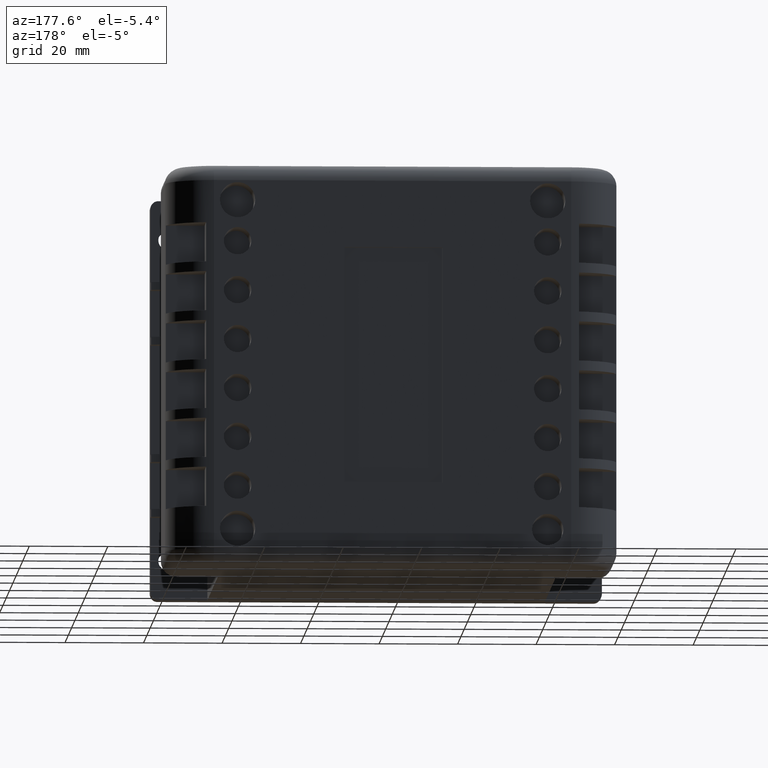
[diagram: clean part render]
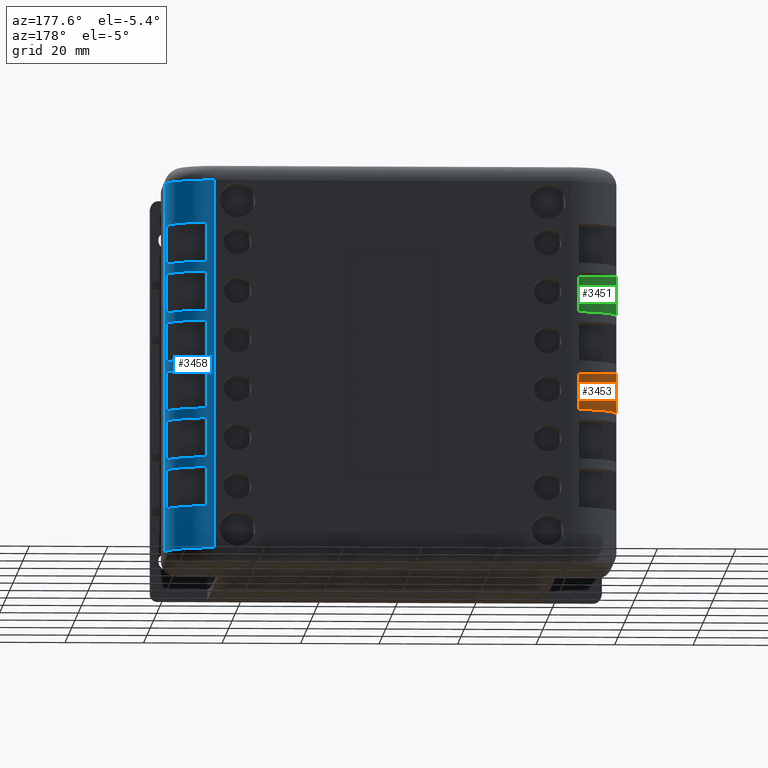
[diagram: same view with three faces highlighted in distinct colors, each labeled with its STEP entity id]
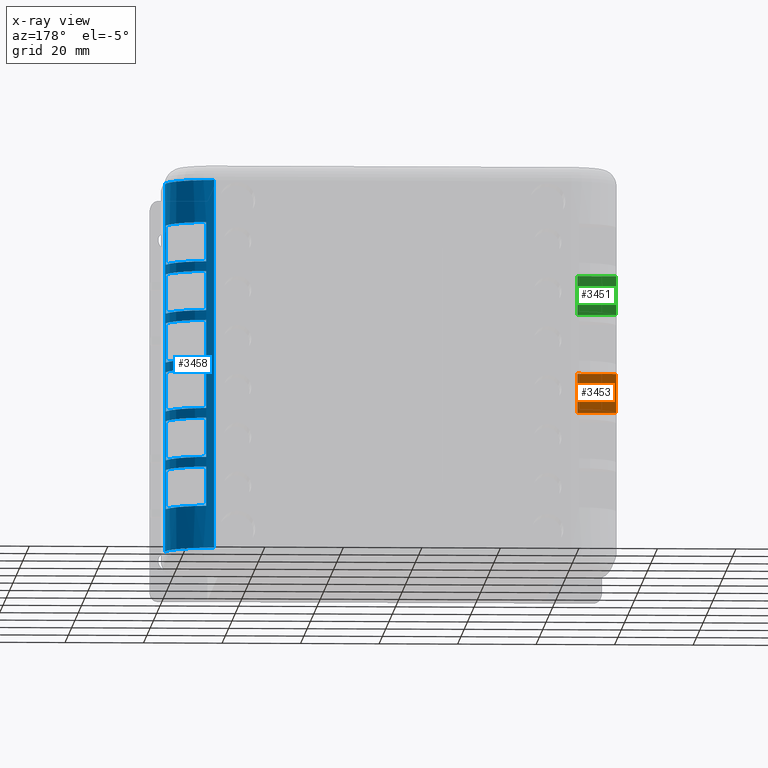
[diagram: x-ray of the same camera — body ghosted, the three highlighted faces saturated]
A machine part, auxiliary view with three faces highlighted in distinct colors.
The next image is the same camera in x-ray (body ghosted, the three faces saturated) — at least one of them is partly hidden behind the body in this view.
Their STEP definitions:

[orange] entity #3453 — the highlighted planar face has unit normal (0, 1, 0).
#414=FACE_OUTER_BOUND('',#648,.T.);
#648=EDGE_LOOP('',(#2790,#2791,#2792,#2793));
#926=LINE('',#5599,#1246);
#944=LINE('',#5644,#1264);
#946=LINE('',#5647,#1266);
#959=LINE('',#5676,#1279);
#1246=VECTOR('',#4655,10.);
#1264=VECTOR('',#4695,10.);
#1266=VECTOR('',#4699,10.);
#1279=VECTOR('',#4736,10.);
#1552=VERTEX_POINT('',#5592);
#1555=VERTEX_POINT('',#5597);
#1570=VERTEX_POINT('',#5641);
#1571=VERTEX_POINT('',#5643);
#1954=EDGE_CURVE('',#1555,#1552,#926,.T.);
#1976=EDGE_CURVE('',#1571,#1570,#944,.T.);
#1978=EDGE_CURVE('',#1570,#1552,#946,.T.);
#1991=EDGE_CURVE('',#1555,#1571,#959,.T.);
#2790=ORIENTED_EDGE('',*,*,#1954,.F.);
#2791=ORIENTED_EDGE('',*,*,#1991,.T.);
#2792=ORIENTED_EDGE('',*,*,#1976,.T.);
#2793=ORIENTED_EDGE('',*,*,#1978,.T.);
#3043=PLANE('',#3860);
#3453=ADVANCED_FACE('',(#414),#3043,.T.);
#3860=AXIS2_PLACEMENT_3D('',#5677,#4737,#4738);
#4655=DIRECTION('',(-3.483052626275E-16,0.,-1.));
#4695=DIRECTION('',(-1.14069973510506E-15,0.,-1.));
#4699=DIRECTION('',(-1.,0.,6.96610525255E-16));
#4736=DIRECTION('',(1.,0.,-6.96610525255E-16));
#4737=DIRECTION('center_axis',(0.,1.,0.));
#4738=DIRECTION('ref_axis',(-6.96610525255E-16,0.,-1.));
#5592=CARTESIAN_POINT('',(-114.832159566199,27.,39.75));
#5597=CARTESIAN_POINT('',(-114.832159566199,27.,49.75));
#5599=CARTESIAN_POINT('',(-114.832159566199,27.,25.5));
#5641=CARTESIAN_POINT('',(-105.,27.,39.75));
#5643=CARTESIAN_POINT('',(-105.,27.,49.75));
#5644=CARTESIAN_POINT('',(-105.,27.,39.75));
#5647=CARTESIAN_POINT('',(-115.,27.,39.75));
#5676=CARTESIAN_POINT('',(-105.,27.,49.75));
#5677=CARTESIAN_POINT('Origin',(-110.,27.,44.75));

[blue] entity #3458 — the highlighted cylindrical surface (partial cylindrical patch) has radius 12 mm, axis along (-0, 0, -1).
#87=CYLINDRICAL_SURFACE('',#3865,12.);
#168=CIRCLE('',#3804,12.);
#178=CIRCLE('',#3822,12.);
#192=CIRCLE('',#3866,12.);
#193=CIRCLE('',#3867,12.);
#194=CIRCLE('',#3868,12.);
#195=CIRCLE('',#3869,12.);
#196=CIRCLE('',#3870,12.);
#197=CIRCLE('',#3871,12.);
#198=CIRCLE('',#3872,12.);
#199=CIRCLE('',#3873,12.);
#200=CIRCLE('',#3874,12.);
#201=CIRCLE('',#3875,12.);
#202=CIRCLE('',#3876,12.);
#203=CIRCLE('',#3877,12.);
#238=FACE_BOUND('',#654,.T.);
#239=FACE_BOUND('',#655,.T.);
#240=FACE_BOUND('',#656,.T.);
#241=FACE_BOUND('',#657,.T.);
#242=FACE_BOUND('',#658,.T.);
#243=FACE_BOUND('',#659,.T.);
#419=FACE_OUTER_BOUND('',#653,.T.);
#653=EDGE_LOOP('',(#2808,#2809,#2810,#2811));
#654=EDGE_LOOP('',(#2812,#2813,#2814,#2815));
#655=EDGE_LOOP('',(#2816,#2817,#2818,#2819));
#656=EDGE_LOOP('',(#2820,#2821,#2822,#2823));
#657=EDGE_LOOP('',(#2824,#2825,#2826,#2827));
#658=EDGE_LOOP('',(#2828,#2829,#2830,#2831));
#659=EDGE_LOOP('',(#2832,#2833,#2834,#2835));
#910=LINE('',#5536,#1230);
#955=LINE('',#5665,#1275);
#962=LINE('',#5689,#1282);
#963=LINE('',#5692,#1283);
#964=LINE('',#5697,#1284);
#965=LINE('',#5700,#1285);
#966=LINE('',#5705,#1286);
#967=LINE('',#5708,#1287);
#968=LINE('',#5713,#1288);
#969=LINE('',#5716,#1289);
#970=LINE('',#5721,#1290);
#971=LINE('',#5724,#1291);
#972=LINE('',#5729,#1292);
#973=LINE('',#5732,#1293);
#1230=VECTOR('',#4591,10.);
#1275=VECTOR('',#4718,10.);
#1282=VECTOR('',#4753,10.);
#1283=VECTOR('',#4756,10.);
#1284=VECTOR('',#4759,10.);
#1285=VECTOR('',#4762,10.);
#1286=VECTOR('',#4765,10.);
#1287=VECTOR('',#4768,10.);
#1288=VECTOR('',#4771,10.);
#1289=VECTOR('',#4774,10.);
#1290=VECTOR('',#4777,10.);
#1291=VECTOR('',#4780,10.);
#1292=VECTOR('',#4783,10.);
#1293=VECTOR('',#4786,10.);
#1528=VERTEX_POINT('',#5517);
#1529=VERTEX_POINT('',#5521);
#1532=VERTEX_POINT('',#5535);
#1538=VERTEX_POINT('',#5552);
#1576=VERTEX_POINT('',#5685);
#1577=VERTEX_POINT('',#5686);
#1578=VERTEX_POINT('',#5688);
#1579=VERTEX_POINT('',#5690);
#1580=VERTEX_POINT('',#5693);
#1581=VERTEX_POINT('',#5694);
#1582=VERTEX_POINT('',#5696);
#1583=VERTEX_POINT('',#5698);
#1584=VERTEX_POINT('',#5701);
#1585=VERTEX_POINT('',#5702);
#1586=VERTEX_POINT('',#5704);
#1587=VERTEX_POINT('',#5706);
#1588=VERTEX_POINT('',#5709);
#1589=VERTEX_POINT('',#5710);
#1590=VERTEX_POINT('',#5712);
#1591=VERTEX_POINT('',#5714);
#1592=VERTEX_POINT('',#5717);
#1593=VERTEX_POINT('',#5718);
#1594=VERTEX_POINT('',#5720);
#1595=VERTEX_POINT('',#5722);
#1596=VERTEX_POINT('',#5725);
#1597=VERTEX_POINT('',#5726);
#1598=VERTEX_POINT('',#5728);
#1599=VERTEX_POINT('',#5730);
#1916=EDGE_CURVE('',#1529,#1528,#168,.T.);
#1922=EDGE_CURVE('',#1532,#1528,#910,.T.);
#1934=EDGE_CURVE('',#1532,#1538,#178,.T.);
#1987=EDGE_CURVE('',#1529,#1538,#955,.T.);
#1994=EDGE_CURVE('',#1576,#1577,#192,.T.);
#1995=EDGE_CURVE('',#1577,#1578,#962,.T.);
#1996=EDGE_CURVE('',#1578,#1579,#193,.T.);
#1997=EDGE_CURVE('',#1579,#1576,#963,.T.);
#1998=EDGE_CURVE('',#1580,#1581,#194,.T.);
#1999=EDGE_CURVE('',#1581,#1582,#964,.T.);
#2000=EDGE_CURVE('',#1582,#1583,#195,.T.);
#2001=EDGE_CURVE('',#1583,#1580,#965,.T.);
#2002=EDGE_CURVE('',#1584,#1585,#196,.T.);
#2003=EDGE_CURVE('',#1585,#1586,#966,.T.);
#2004=EDGE_CURVE('',#1586,#1587,#197,.T.);
#2005=EDGE_CURVE('',#1587,#1584,#967,.T.);
#2006=EDGE_CURVE('',#1588,#1589,#198,.T.);
#2007=EDGE_CURVE('',#1589,#1590,#968,.T.);
#2008=EDGE_CURVE('',#1590,#1591,#199,.T.);
#2009=EDGE_CURVE('',#1591,#1588,#969,.T.);
#2010=EDGE_CURVE('',#1592,#1593,#200,.T.);
#2011=EDGE_CURVE('',#1593,#1594,#970,.T.);
#2012=EDGE_CURVE('',#1594,#1595,#201,.T.);
#2013=EDGE_CURVE('',#1595,#1592,#971,.T.);
#2014=EDGE_CURVE('',#1596,#1597,#202,.T.);
#2015=EDGE_CURVE('',#1597,#1598,#972,.T.);
#2016=EDGE_CURVE('',#1598,#1599,#203,.T.);
#2017=EDGE_CURVE('',#1599,#1596,#973,.T.);
#2808=ORIENTED_EDGE('',*,*,#1916,.F.);
#2809=ORIENTED_EDGE('',*,*,#1987,.T.);
#2810=ORIENTED_EDGE('',*,*,#1934,.F.);
#2811=ORIENTED_EDGE('',*,*,#1922,.T.);
#2812=ORIENTED_EDGE('',*,*,#1994,.T.);
#2813=ORIENTED_EDGE('',*,*,#1995,.T.);
#2814=ORIENTED_EDGE('',*,*,#1996,.T.);
#2815=ORIENTED_EDGE('',*,*,#1997,.T.);
#2816=ORIENTED_EDGE('',*,*,#1998,.T.);
#2817=ORIENTED_EDGE('',*,*,#1999,.T.);
#2818=ORIENTED_EDGE('',*,*,#2000,.T.);
#2819=ORIENTED_EDGE('',*,*,#2001,.T.);
#2820=ORIENTED_EDGE('',*,*,#2002,.T.);
#2821=ORIENTED_EDGE('',*,*,#2003,.T.);
#2822=ORIENTED_EDGE('',*,*,#2004,.T.);
#2823=ORIENTED_EDGE('',*,*,#2005,.T.);
#2824=ORIENTED_EDGE('',*,*,#2006,.T.);
#2825=ORIENTED_EDGE('',*,*,#2007,.T.);
#2826=ORIENTED_EDGE('',*,*,#2008,.T.);
#2827=ORIENTED_EDGE('',*,*,#2009,.T.);
#2828=ORIENTED_EDGE('',*,*,#2010,.T.);
#2829=ORIENTED_EDGE('',*,*,#2011,.T.);
#2830=ORIENTED_EDGE('',*,*,#2012,.T.);
#2831=ORIENTED_EDGE('',*,*,#2013,.T.);
#2832=ORIENTED_EDGE('',*,*,#2014,.T.);
#2833=ORIENTED_EDGE('',*,*,#2015,.T.);
#2834=ORIENTED_EDGE('',*,*,#2016,.T.);
#2835=ORIENTED_EDGE('',*,*,#2017,.T.);
#3458=ADVANCED_FACE('',(#419,#238,#239,#240,#241,#242,#243),#87,.T.);
#3804=AXIS2_PLACEMENT_3D('',#5523,#4573,#4574);
#3822=AXIS2_PLACEMENT_3D('',#5559,#4617,#4618);
#3865=AXIS2_PLACEMENT_3D('',#5684,#4749,#4750);
#3866=AXIS2_PLACEMENT_3D('',#5687,#4751,#4752);
#3867=AXIS2_PLACEMENT_3D('',#5691,#4754,#4755);
#3868=AXIS2_PLACEMENT_3D('',#5695,#4757,#4758);
#3869=AXIS2_PLACEMENT_3D('',#5699,#4760,#4761);
#3870=AXIS2_PLACEMENT_3D('',#5703,#4763,#4764);
#3871=AXIS2_PLACEMENT_3D('',#5707,#4766,#4767);
#3872=AXIS2_PLACEMENT_3D('',#5711,#4769,#4770);
#3873=AXIS2_PLACEMENT_3D('',#5715,#4772,#4773);
#3874=AXIS2_PLACEMENT_3D('',#5719,#4775,#4776);
#3875=AXIS2_PLACEMENT_3D('',#5723,#4778,#4779);
#3876=AXIS2_PLACEMENT_3D('',#5727,#4781,#4782);
#3877=AXIS2_PLACEMENT_3D('',#5731,#4784,#4785);
#4573=DIRECTION('center_axis',(-1.71491501135003E-32,0.,-1.));
#4574=DIRECTION('ref_axis',(0.707106781186548,0.707106781186548,0.));
#4591=DIRECTION('',(-3.483052626275E-16,0.,-1.));
#4617=DIRECTION('center_axis',(0.,0.,1.));
#4618=DIRECTION('ref_axis',(0.707106781186548,0.707106781186547,0.));
#4718=DIRECTION('',(3.483052626275E-16,0.,1.));
#4749=DIRECTION('center_axis',(-3.483052626275E-16,0.,-1.));
#4750=DIRECTION('ref_axis',(0.707106781186548,0.707106781186548,0.));
#4751=DIRECTION('center_axis',(0.,0.,-1.));
#4752=DIRECTION('ref_axis',(0.707106781186548,0.707106781186548,0.));
#4753=DIRECTION('',(3.483052626275E-16,0.,1.));
#4754=DIRECTION('center_axis',(0.,0.,1.));
#4755=DIRECTION('ref_axis',(0.707106781186548,0.707106781186548,0.));
#4756=DIRECTION('',(-3.483052626275E-16,0.,-1.));
#4757=DIRECTION('center_axis',(0.,0.,-1.));
#4758=DIRECTION('ref_axis',(0.707106781186548,0.707106781186548,0.));
#4759=DIRECTION('',(3.483052626275E-16,0.,1.));
#4760=DIRECTION('center_axis',(0.,0.,1.));
#4761=DIRECTION('ref_axis',(0.707106781186548,0.707106781186548,0.));
#4762=DIRECTION('',(-3.483052626275E-16,0.,-1.));
#4763=DIRECTION('center_axis',(0.,0.,-1.));
#4764=DIRECTION('ref_axis',(0.707106781186548,0.707106781186548,0.));
#4765=DIRECTION('',(3.483052626275E-16,0.,1.));
#4766=DIRECTION('center_axis',(0.,0.,1.));
#4767=DIRECTION('ref_axis',(0.707106781186548,0.707106781186548,0.));
#4768=DIRECTION('',(-3.483052626275E-16,0.,-1.));
#4769=DIRECTION('center_axis',(0.,0.,-1.));
#4770=DIRECTION('ref_axis',(0.707106781186548,0.707106781186548,0.));
#4771=DIRECTION('',(3.483052626275E-16,0.,1.));
#4772=DIRECTION('center_axis',(0.,0.,1.));
#4773=DIRECTION('ref_axis',(0.707106781186548,0.707106781186548,0.));
#4774=DIRECTION('',(-3.483052626275E-16,0.,-1.));
#4775=DIRECTION('center_axis',(0.,0.,-1.));
#4776=DIRECTION('ref_axis',(0.707106781186548,0.707106781186548,0.));
#4777=DIRECTION('',(3.483052626275E-16,0.,1.));
#4778=DIRECTION('center_axis',(0.,0.,1.));
#4779=DIRECTION('ref_axis',(0.707106781186548,0.707106781186548,0.));
#4780=DIRECTION('',(-3.483052626275E-16,0.,-1.));
#4781=DIRECTION('center_axis',(0.,0.,-1.));
#4782=DIRECTION('ref_axis',(0.707106781186548,0.707106781186548,0.));
#4783=DIRECTION('',(3.483052626275E-16,0.,1.));
#4784=DIRECTION('center_axis',(0.,0.,1.));
#4785=DIRECTION('ref_axis',(0.707106781186548,0.707106781186548,0.));
#4786=DIRECTION('',(-3.483052626275E-16,0.,-1.));
#5517=CARTESIAN_POINT('',(1.39322105051001E-15,25.,4.));
#5521=CARTESIAN_POINT('',(-12.,37.,4.));
#5523=CARTESIAN_POINT('Origin',(-12.,25.,4.));
#5535=CARTESIAN_POINT('',(3.4133915737495E-14,25.,98.));
#5536=CARTESIAN_POINT('',(2.66453525910038E-14,25.,76.5));
#5552=CARTESIAN_POINT('',(-12.,37.,98.));
#5559=CARTESIAN_POINT('Origin',(-12.,25.,98.));
#5665=CARTESIAN_POINT('',(-12.,37.,76.5));
#5684=CARTESIAN_POINT('Origin',(-12.,25.,76.5));
#5685=CARTESIAN_POINT('',(-9.99999999999998,36.8321595661992,52.25));
#5686=CARTESIAN_POINT('',(-0.167840433800747,27.,52.25));
#5687=CARTESIAN_POINT('Origin',(-12.,25.,52.25));
#5688=CARTESIAN_POINT('',(-0.167840433800744,27.,62.25));
#5689=CARTESIAN_POINT('',(-0.167840433800739,27.,76.5));
#5690=CARTESIAN_POINT('',(-10.,36.8321595661992,62.25));
#5691=CARTESIAN_POINT('Origin',(-12.,25.,62.25));
#5692=CARTESIAN_POINT('',(-10.0000000000001,36.8321595661993,76.5));
#5693=CARTESIAN_POINT('',(-10.,36.8321595661992,14.75));
#5694=CARTESIAN_POINT('',(-0.16784043380076,27.,14.75));
#5695=CARTESIAN_POINT('Origin',(-12.,25.,14.75));
#5696=CARTESIAN_POINT('',(-0.167840433800757,27.,24.75));
#5697=CARTESIAN_POINT('',(-0.167840433800739,27.,76.5));
#5698=CARTESIAN_POINT('',(-10.,36.8321595661992,24.75));
#5699=CARTESIAN_POINT('Origin',(-12.,25.,24.75));
#5700=CARTESIAN_POINT('',(-10.,36.8321595661992,76.5));
#5701=CARTESIAN_POINT('',(-9.99999999999998,36.8321595661992,64.75));
#5702=CARTESIAN_POINT('',(-0.167840433800743,27.,64.75));
#5703=CARTESIAN_POINT('Origin',(-12.,25.,64.75));
#5704=CARTESIAN_POINT('',(-0.167840433800739,27.,74.75));
#5705=CARTESIAN_POINT('',(-0.167840433800739,27.,76.5));
#5706=CARTESIAN_POINT('',(-9.99999999999998,36.8321595661992,74.75));
#5707=CARTESIAN_POINT('Origin',(-12.,25.,74.75));
#5708=CARTESIAN_POINT('',(-9.99999999999998,36.8321595661992,76.5));
#5709=CARTESIAN_POINT('',(-10.,36.8321595661992,39.75));
#5710=CARTESIAN_POINT('',(-0.167840433800752,27.,39.75));
#5711=CARTESIAN_POINT('Origin',(-12.,25.,39.75));
#5712=CARTESIAN_POINT('',(-0.167840433800748,27.,49.75));
#5713=CARTESIAN_POINT('',(-0.167840433800739,27.,76.5));
#5714=CARTESIAN_POINT('',(-10.,36.8321595661992,49.75));
#5715=CARTESIAN_POINT('Origin',(-12.,25.,49.75));
#5716=CARTESIAN_POINT('',(-10.,36.8321595661992,76.5));
#5717=CARTESIAN_POINT('',(-10.,36.8321595661992,27.25));
#5718=CARTESIAN_POINT('',(-0.167840433800756,27.,27.25));
#5719=CARTESIAN_POINT('Origin',(-12.,25.,27.25));
#5720=CARTESIAN_POINT('',(-0.167840433800753,27.,37.25));
#5721=CARTESIAN_POINT('',(-0.167840433800739,27.,76.5));
#5722=CARTESIAN_POINT('',(-10.,36.8321595661992,37.25));
#5723=CARTESIAN_POINT('Origin',(-12.,25.,37.25));
#5724=CARTESIAN_POINT('',(-10.,36.8321595661992,76.5));
#5725=CARTESIAN_POINT('',(-9.99999999999995,36.8321595661992,77.25));
#5726=CARTESIAN_POINT('',(-0.167840433800739,27.,77.25));
#5727=CARTESIAN_POINT('Origin',(-12.,25.,77.25));
#5728=CARTESIAN_POINT('',(-0.167840433800735,27.,87.25));
#5729=CARTESIAN_POINT('',(-0.167840433800739,27.,76.5));
#5730=CARTESIAN_POINT('',(-9.99999999999995,36.8321595661992,87.25));
#5731=CARTESIAN_POINT('Origin',(-12.,25.,87.25));
#5732=CARTESIAN_POINT('',(-9.99999999999995,36.8321595661992,76.5));

[green] entity #3451 — the highlighted planar face has unit normal (0, 1, 0).
#412=FACE_OUTER_BOUND('',#646,.T.);
#646=EDGE_LOOP('',(#2783,#2784,#2785,#2786));
#924=LINE('',#5591,#1244);
#940=LINE('',#5636,#1260);
#942=LINE('',#5639,#1262);
#958=LINE('',#5673,#1278);
#1244=VECTOR('',#4649,10.);
#1260=VECTOR('',#4687,10.);
#1262=VECTOR('',#4691,10.);
#1278=VECTOR('',#4731,10.);
#1548=VERTEX_POINT('',#5584);
#1551=VERTEX_POINT('',#5589);
#1568=VERTEX_POINT('',#5633);
#1569=VERTEX_POINT('',#5635);
#1950=EDGE_CURVE('',#1551,#1548,#924,.T.);
#1972=EDGE_CURVE('',#1569,#1568,#940,.T.);
#1974=EDGE_CURVE('',#1568,#1548,#942,.T.);
#1990=EDGE_CURVE('',#1551,#1569,#958,.T.);
#2783=ORIENTED_EDGE('',*,*,#1950,.F.);
#2784=ORIENTED_EDGE('',*,*,#1990,.T.);
#2785=ORIENTED_EDGE('',*,*,#1972,.T.);
#2786=ORIENTED_EDGE('',*,*,#1974,.T.);
#3041=PLANE('',#3858);
#3451=ADVANCED_FACE('',(#412),#3041,.T.);
#3858=AXIS2_PLACEMENT_3D('',#5674,#4732,#4733);
#4649=DIRECTION('',(-3.483052626275E-16,0.,-1.));
#4687=DIRECTION('',(-6.96610525255E-16,0.,-1.));
#4691=DIRECTION('',(-1.,0.,6.96610525255E-16));
#4731=DIRECTION('',(1.,0.,-6.96610525255E-16));
#4732=DIRECTION('center_axis',(0.,1.,0.));
#4733=DIRECTION('ref_axis',(-6.96610525255E-16,0.,-1.));
#5584=CARTESIAN_POINT('',(-114.832159566199,27.,64.7500000000001));
#5589=CARTESIAN_POINT('',(-114.832159566199,27.,74.7500000000001));
#5591=CARTESIAN_POINT('',(-114.832159566199,27.,25.5));
#5633=CARTESIAN_POINT('',(-105.,27.,64.75));
#5635=CARTESIAN_POINT('',(-105.,27.,74.75));
#5636=CARTESIAN_POINT('',(-105.,27.,64.75));
#5639=CARTESIAN_POINT('',(-115.,27.,64.7500000000001));
#5673=CARTESIAN_POINT('',(-105.,27.,74.75));
#5674=CARTESIAN_POINT('Origin',(-110.,27.,69.7500000000001));